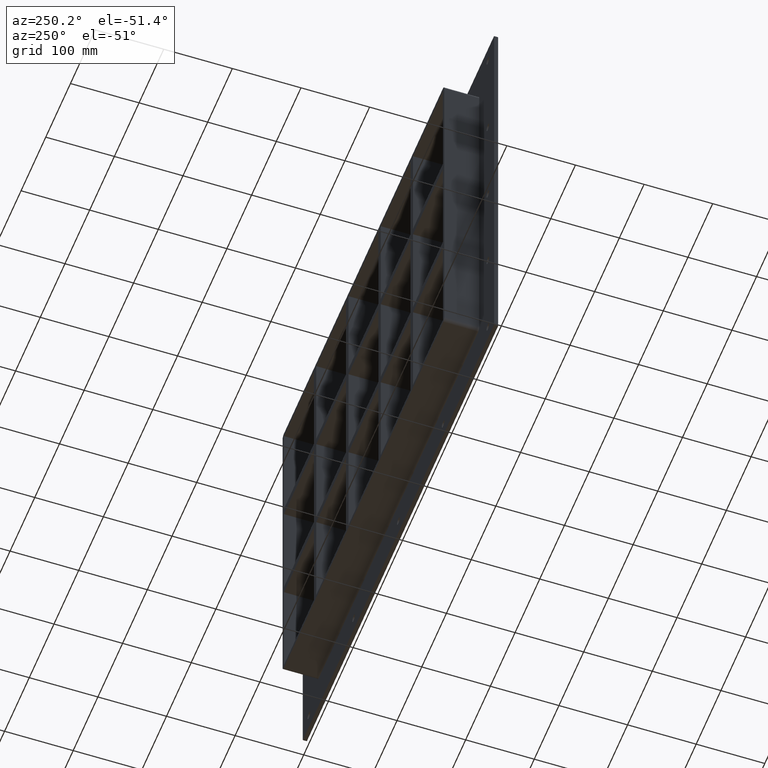
[diagram: clean part render]
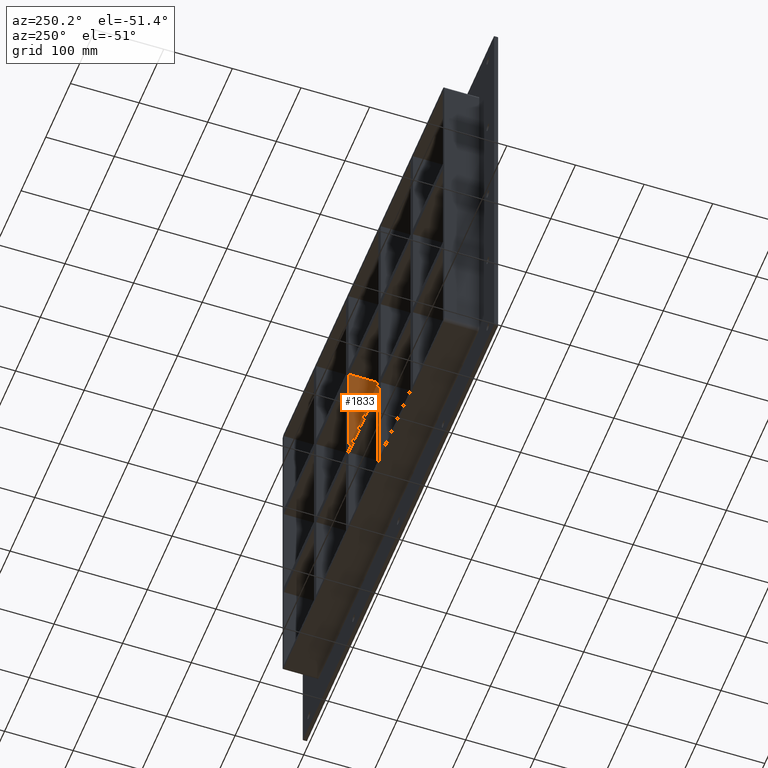
[diagram: same view with one face highlighted and labeled with its STEP entity id]
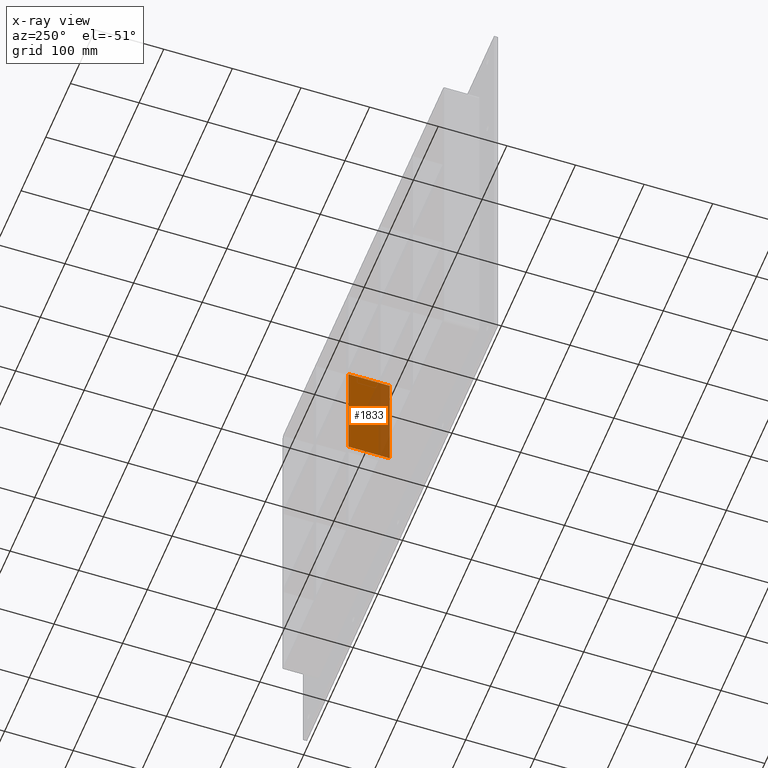
[diagram: x-ray of the same camera — body ghosted, the highlighted face saturated]
A machine part, auxiliary view. The second image highlights one B-rep face of the part: STEP entity #1833.
The next image is the same camera in x-ray: the body ghosted, the highlighted face saturated — about 39% of this face is hidden behind the body in this view.
In plain terms, the highlighted planar face has unit normal (-1, 0, 0).
Its self-contained STEP definition (entity closure, byte-faithful):
#601=CARTESIAN_POINT('',(60.249999999997819,-3.0,79.749999999989782));
#602=VERTEX_POINT('',#601);
#603=CARTESIAN_POINT('',(60.249999999997819,57.0,79.749999999989782));
#604=VERTEX_POINT('',#603);
#605=CARTESIAN_POINT('',(60.24999999999784,-3.0,79.749999999989768));
#606=DIRECTION('',(0.0,1.0,0.0));
#607=VECTOR('',#606,60.0);
#608=LINE('',#605,#607);
#609=EDGE_CURVE('',#602,#604,#608,.T.);
#1477=CARTESIAN_POINT('',(60.249999999997847,57.0,-79.749999999999943));
#1478=VERTEX_POINT('',#1477);
#1485=CARTESIAN_POINT('',(60.24999999999784,57.0,-79.749999999999943));
#1486=DIRECTION('',(0.0,0.0,1.0));
#1487=VECTOR('',#1486,159.4999999999898);
#1488=LINE('',#1485,#1487);
#1489=EDGE_CURVE('',#1478,#604,#1488,.T.);
#1810=CARTESIAN_POINT('',(60.249999999997854,-3.0,-251.25000000000003));
#1811=DIRECTION('',(-1.0,0.0,0.0));
#1812=DIRECTION('',(0.0,0.0,1.0));
#1813=AXIS2_PLACEMENT_3D('',#1810,#1811,#1812);
#1814=PLANE('',#1813);
#1815=ORIENTED_EDGE('',*,*,#609,.T.);
#1816=ORIENTED_EDGE('',*,*,#1489,.F.);
#1817=CARTESIAN_POINT('',(60.249999999997847,-3.0,-79.749999999999943));
#1818=VERTEX_POINT('',#1817);
#1819=CARTESIAN_POINT('',(60.249999999997847,-3.0,-79.749999999999943));
#1820=DIRECTION('',(0.0,1.0,0.0));
#1821=VECTOR('',#1820,60.0);
#1822=LINE('',#1819,#1821);
#1823=EDGE_CURVE('',#1818,#1478,#1822,.T.);
#1824=ORIENTED_EDGE('',*,*,#1823,.F.);
#1825=CARTESIAN_POINT('',(60.24999999999784,-3.0,-79.749999999999943));
#1826=DIRECTION('',(0.0,0.0,1.0));
#1827=VECTOR('',#1826,159.4999999999898);
#1828=LINE('',#1825,#1827);
#1829=EDGE_CURVE('',#1818,#602,#1828,.T.);
#1830=ORIENTED_EDGE('',*,*,#1829,.T.);
#1831=EDGE_LOOP('',(#1815,#1816,#1824,#1830));
#1832=FACE_OUTER_BOUND('',#1831,.T.);
#1833=ADVANCED_FACE('',(#1832),#1814,.T.);